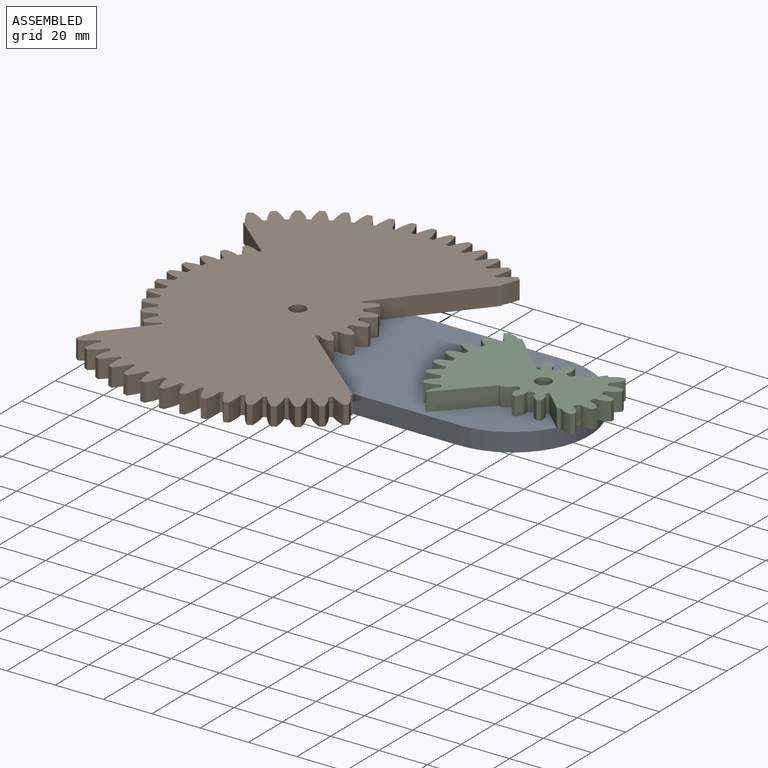
[diagram: assembled view]
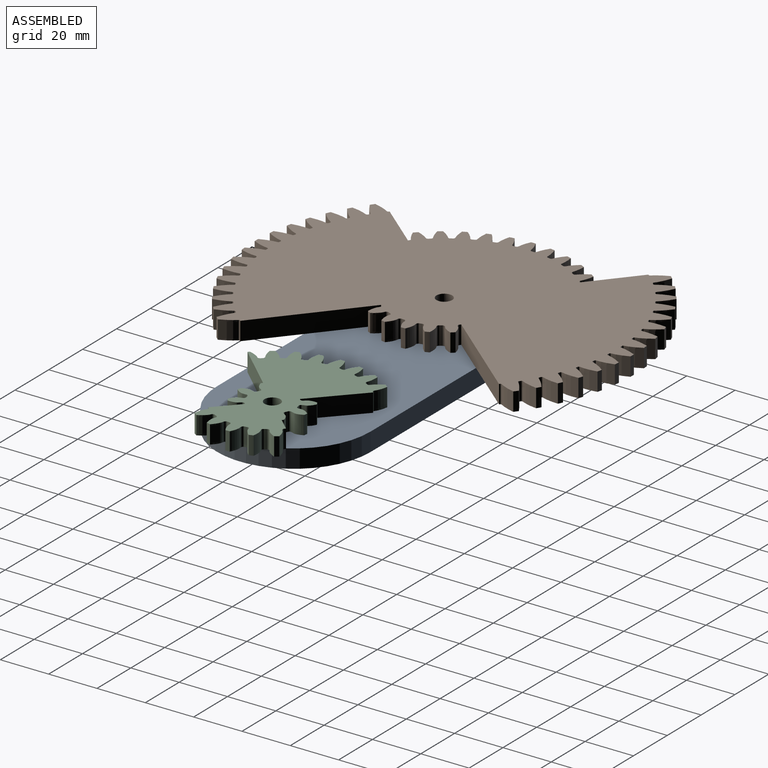
[diagram: assembled view, second angle]
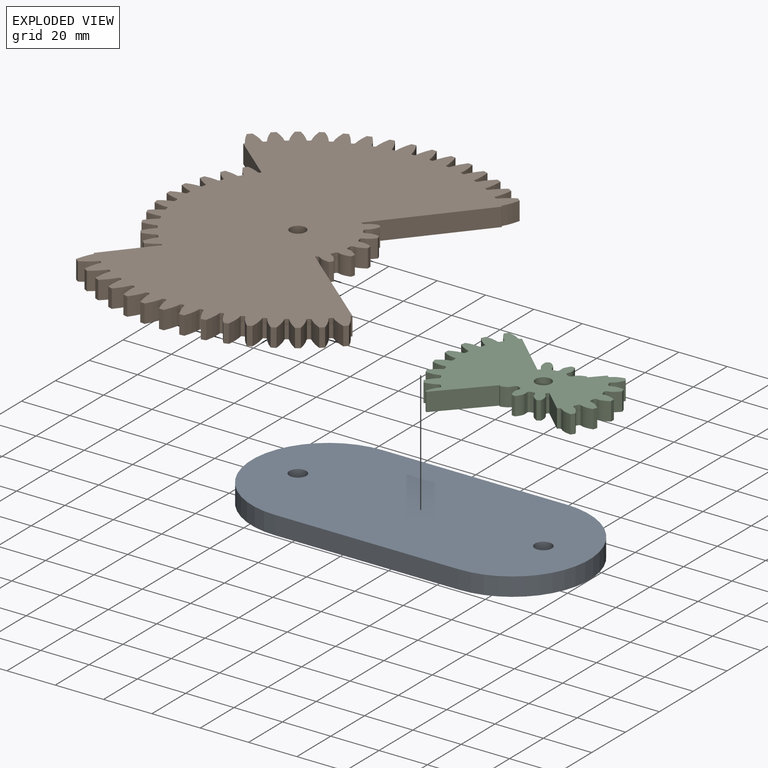
[diagram: exploded view]
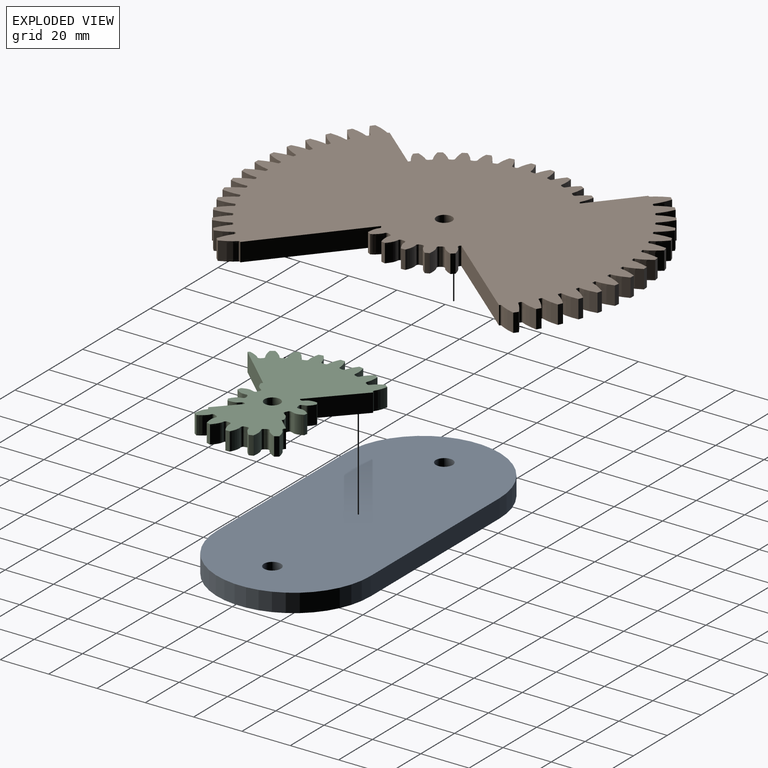
[diagram: exploded view, second angle]
ASSEMBLY  parts=3 mates=2
PART A: 8 faces, bbox 139.7x63.5x7.6 mm
  f0: plane 76.2x7.62mm, normal (0,1,0), area 580.6mm2, adj f4,f5,f6,f7
  f1: plane 76.2x7.62mm, normal (0,-1,0), area 580.6mm2, adj f4,f5,f6,f7
  f2: cylinder r=3.5mm len=7.62mm, axis (0,0,-1), area 167.6mm2, adj f4,f5
  f3: cylinder r=3.5mm len=7.62mm, axis (0,0,-1), area 167.6mm2, adj f4,f5
  f4: plane 139.7x63.5mm, normal (0,0,1), area 7928.7mm2, adj f0,f1,f2,f3,f6,f7
  f5: plane 139.7x63.5mm, normal (0,0,-1), area 7928.7mm2, adj f0,f1,f2,f3,f6,f7
  f6: cylinder r=31.75mm len=63.5mm, axis (0,0,-1), area 760.1mm2, adj f0,f1,f4,f5
  f7: cylinder r=31.75mm len=63.5mm, axis (0,0,1), area 760.1mm2, adj f0,f1,f4,f5
PART B: 281 faces, bbox 157.4x7.6x157.4 mm
  f0: plane 49.38x7.62mm, normal (0,0,1), area 376.3mm2, adj f3,f45,f96,f190
  f1: plane 49.38x7.62mm, normal (1,0,0), area 376.3mm2, adj f3,f45,f95,f97
  f2: cylinder r=3.25mm len=7.62mm, axis (0,1,0), area 155.6mm2, adj f3,f45
  f3: plane 157.36x157.36mm, normal (0,-1,0), area 11475.5mm2, adj f0,f1,f2,f4,f5,f6,f7,f8
  f4: extruded ~7.62x4.98mm, area 41.1mm2, adj f3,f44,f45,f46
  f5: cylinder r=47.62mm len=7.62mm, axis (0,1,0), area 3.5mm2, adj f3,f45,f46,f189
  f6: cylinder r=47.62mm len=7.62mm, axis (0,1,0), area 3.5mm2, adj f3,f45,f47,f188
  f7: extruded ~7.62x4.98mm, area 41.1mm2, adj f3,f8,f45,f47
  f8: cylinder r=53.34mm len=7.62mm, axis (0,1,0), area 14.7mm2, adj f3,f7,f9,f45
  f9: extruded ~7.62x5.23mm, area 41.1mm2, adj f3,f8,f45,f48
  f10: cylinder r=47.62mm len=7.62mm, axis (0,1,0), area 7mm2, adj f3,f45,f48,f49
  f11: extruded ~7.62x4.61mm, area 41.1mm2, adj f3,f12,f45,f49
  f12: cylinder r=53.34mm len=7.62mm, axis (0,1,0), area 14.7mm2, adj f3,f11,f13,f45
  f13: extruded ~7.62x5.35mm, area 41.1mm2, adj f3,f12,f45,f50
  f14: cylinder r=47.62mm len=7.62mm, axis (0,1,0), area 7mm2, adj f3,f45,f50,f51
  f15: extruded ~7.62x4.12mm, area 41.1mm2, adj f3,f16,f45,f51
  f16: cylinder r=53.34mm len=7.62mm, axis (0,1,0), area 14.7mm2, adj f3,f15,f17,f45
  f17: extruded ~7.62x5.34mm, area 41.1mm2, adj f3,f16,f45,f52
  f18: cylinder r=47.62mm len=7.62mm, axis (0,1,0), area 7mm2, adj f3,f45,f52,f53
  f19: extruded ~7.62x4.04mm, area 41.1mm2, adj f3,f20,f45,f53
  f20: cylinder r=53.34mm len=7.62mm, axis (0,1,0), area 14.7mm2, adj f3,f19,f21,f45
  f21: extruded ~7.62x5.2mm, area 41.1mm2, adj f3,f20,f45,f54
  f22: cylinder r=47.62mm len=7.62mm, axis (0,1,0), area 7mm2, adj f3,f45,f54,f55
  f23: extruded ~7.62x4.54mm, area 41.1mm2, adj f3,f24,f45,f55
  f24: cylinder r=53.34mm len=7.62mm, axis (0,1,0), area 14.7mm2, adj f3,f23,f25,f45
  f25: extruded ~7.62x4.93mm, area 41.1mm2, adj f3,f24,f45,f56
  f26: cylinder r=47.62mm len=7.62mm, axis (0,1,0), area 7mm2, adj f3,f45,f56,f57
  f27: extruded ~7.62x4.93mm, area 41.1mm2, adj f3,f28,f45,f57
  f28: cylinder r=53.34mm len=7.62mm, axis (0,1,0), area 14.7mm2, adj f3,f27,f29,f45
  f29: extruded ~7.62x4.54mm, area 41.1mm2, adj f3,f28,f45,f58
  f30: cylinder r=47.62mm len=7.62mm, axis (0,1,0), area 7mm2, adj f3,f45,f58,f59
  f31: extruded ~7.62x5.2mm, area 41.1mm2, adj f3,f32,f45,f59
  f32: cylinder r=53.34mm len=7.62mm, axis (0,1,0), area 14.7mm2, adj f3,f31,f33,f45
  f33: extruded ~7.62x4.04mm, area 41.1mm2, adj f3,f32,f45,f60
  f34: cylinder r=47.62mm len=7.62mm, axis (0,1,0), area 7mm2, adj f3,f45,f60,f61
  f35: extruded ~7.62x5.34mm, area 41.1mm2, adj f3,f36,f45,f61
  f36: cylinder r=53.34mm len=7.62mm, axis (0,1,0), area 14.7mm2, adj f3,f35,f37,f45
  f37: extruded ~7.62x4.12mm, area 41.1mm2, adj f3,f36,f45,f62
  f38: cylinder r=47.62mm len=7.62mm, axis (0,1,0), area 7mm2, adj f3,f45,f62,f63
  f39: extruded ~7.62x5.35mm, area 41.1mm2, adj f3,f40,f45,f63
  f40: cylinder r=53.34mm len=7.62mm, axis (0,1,0), area 14.7mm2, adj f3,f39,f41,f45
  f41: extruded ~7.62x4.61mm, area 41.1mm2, adj f3,f40,f45,f64
  f42: cylinder r=47.62mm len=7.62mm, axis (0,1,0), area 7mm2, adj f3,f45,f64,f65
  f43: extruded ~7.62x5.23mm, area 41.1mm2, adj f3,f44,f45,f65
  f44: cylinder r=53.34mm len=7.62mm, axis (0,1,0), area 14.7mm2, adj f3,f4,f43,f45
  f45: plane 157.36x157.36mm, normal (0,1,0), area 11475.5mm2, adj f0,f1,f2,f4,f5,f6,f7,f8
  f46: cylinder r=0.77mm len=7.62mm, axis (0,1,0), area 8.3mm2, adj f3,f4,f5,f45
  f47: cylinder r=0.77mm len=7.62mm, axis (0,1,0), area 8.3mm2, adj f3,f6,f7,f45
  f48: cylinder r=0.77mm len=7.62mm, axis (0,1,0), area 8.3mm2, adj f3,f9,f10,f45
  f49: cylinder r=0.77mm len=7.62mm, axis (0,1,0), area 8.3mm2, adj f3,f10,f11,f45
  f50: cylinder r=0.77mm len=7.62mm, axis (0,1,0), area 8.3mm2, adj f3,f13,f14,f45
  f51: cylinder r=0.77mm len=7.62mm, axis (0,1,0), area 8.3mm2, adj f3,f14,f15,f45
  f52: cylinder r=0.77mm len=7.62mm, axis (0,1,0), area 8.3mm2, adj f3,f17,f18,f45
  f53: cylinder r=0.77mm len=7.62mm, axis (0,1,0), area 8.3mm2, adj f3,f18,f19,f45
  f54: cylinder r=0.77mm len=7.62mm, axis (0,1,0), area 8.3mm2, adj f3,f21,f22,f45
  f55: cylinder r=0.77mm len=7.62mm, axis (0,1,0), area 8.3mm2, adj f3,f22,f23,f45
  f56: cylinder r=0.77mm len=7.62mm, axis (0,1,0), area 8.3mm2, adj f3,f25,f26,f45
  f57: cylinder r=0.77mm len=7.62mm, axis (0,1,0), area 8.3mm2, adj f3,f26,f27,f45
  f58: cylinder r=0.77mm len=7.62mm, axis (0,1,0), area 8.3mm2, adj f3,f29,f30,f45
  f59: cylinder r=0.77mm len=7.62mm, axis (0,1,0), area 8.3mm2, adj f3,f30,f31,f45
  f60: cylinder r=0.77mm len=7.62mm, axis (0,1,0), area 8.3mm2, adj f3,f33,f34,f45
  f61: cylinder r=0.77mm len=7.62mm, axis (0,1,0), area 8.3mm2, adj f3,f34,f35,f45
  f62: cylinder r=0.77mm len=7.62mm, axis (0,1,0), area 8.3mm2, adj f3,f37,f38,f45
  f63: cylinder r=0.77mm len=7.62mm, axis (0,1,0), area 8.3mm2, adj f3,f38,f39,f45
  f64: cylinder r=0.77mm len=7.62mm, axis (0,1,0), area 8.3mm2, adj f3,f41,f42,f45
  f65: cylinder r=0.77mm len=7.62mm, axis (0,1,0), area 8.3mm2, adj f3,f42,f43,f45
  f66: cylinder r=0.94mm len=7.62mm, axis (0,1,0), area 11mm2, adj f3,f45,f67,f96
  f67: extruded ~7.62x4.62mm, area 39.2mm2, adj f3,f45,f66,f68
  f68: cylinder r=27.94mm len=7.62mm, axis (0,1,0), area 13.4mm2, adj f3,f45,f67,f69
  f69: extruded ~7.62x5.02mm, area 39.2mm2, adj f3,f45,f68,f70
  f70: cylinder r=0.94mm len=7.62mm, axis (0,1,0), area 11mm2, adj f3,f45,f69,f71
  f71: cylinder r=22.23mm len=7.62mm, axis (0,1,0), area 7.7mm2, adj f3,f45,f70,f72
  f72: cylinder r=0.94mm len=7.62mm, axis (0,1,0), area 11mm2, adj f3,f45,f71,f73
  f73: extruded ~7.62x3.76mm, area 39.2mm2, adj f3,f45,f72,f74
  f74: cylinder r=27.94mm len=7.62mm, axis (0,1,0), area 13.4mm2, adj f3,f45,f73,f75
  f75: extruded ~7.62x4.93mm, area 39.2mm2, adj f3,f45,f74,f76
  f76: cylinder r=0.94mm len=7.62mm, axis (0,1,0), area 11mm2, adj f3,f45,f75,f77
  f77: cylinder r=22.23mm len=7.62mm, axis (0,1,0), area 7.7mm2, adj f3,f45,f76,f78
  f78: cylinder r=0.94mm len=7.62mm, axis (0,1,0), area 11mm2, adj f3,f45,f77,f79
  f79: extruded ~7.62x4.36mm, area 39.2mm2, adj f3,f45,f78,f80
  f80: cylinder r=27.94mm len=7.62mm, axis (0,1,0), area 13.4mm2, adj f3,f45,f79,f81
  f81: extruded ~7.62x4.36mm, area 39.2mm2, adj f3,f45,f80,f82
  f82: cylinder r=0.94mm len=7.62mm, axis (0,1,0), area 11mm2, adj f3,f45,f81,f83
  f83: cylinder r=22.23mm len=7.62mm, axis (0,1,0), area 7.7mm2, adj f3,f45,f82,f84
  f84: cylinder r=0.94mm len=7.62mm, axis (0,1,0), area 11mm2, adj f3,f45,f83,f85
  f85: extruded ~7.62x4.93mm, area 39.2mm2, adj f3,f45,f84,f86
  f86: cylinder r=27.94mm len=7.62mm, axis (0,1,0), area 13.4mm2, adj f3,f45,f85,f87
  f87: extruded ~7.62x3.76mm, area 39.2mm2, adj f3,f45,f86,f88
  f88: cylinder r=0.94mm len=7.62mm, axis (0,1,0), area 11mm2, adj f3,f45,f87,f89
  f89: cylinder r=22.23mm len=7.62mm, axis (0,1,0), area 7.7mm2, adj f3,f45,f88,f90
  f90: cylinder r=0.94mm len=7.62mm, axis (0,1,0), area 11mm2, adj f3,f45,f89,f91
  f91: extruded ~7.62x5.02mm, area 39.2mm2, adj f3,f45,f90,f92
  f92: cylinder r=27.94mm len=7.62mm, axis (0,1,0), area 13.4mm2, adj f3,f45,f91,f93
  f93: extruded ~7.62x4.62mm, area 39.2mm2, adj f3,f45,f92,f94
  f94: cylinder r=0.94mm len=7.62mm, axis (0,1,0), area 11mm2, adj f3,f45,f93,f95
  f95: cylinder r=22.23mm len=7.62mm, axis (0,1,0), area 3.9mm2, adj f1,f3,f45,f94
  f96: cylinder r=22.23mm len=7.62mm, axis (0,1,0), area 3.9mm2, adj f0,f3,f45,f66
  f97: cylinder r=71.6mm len=7.62mm, axis (0,1,0), area 2.4mm2, adj f1,f3,f45,f98
  f98: cylinder r=0.54mm len=7.62mm, axis (0,1,0), area 5.9mm2, adj f3,f45,f97,f99
  f99: extruded ~7.62x6.6mm, area 53.5mm2, adj f3,f45,f98,f100
  f100: cylinder r=78.74mm len=7.62mm, axis (0,1,0), area 15.2mm2, adj f3,f45,f99,f101
  f101: extruded ~7.62x6.81mm, area 53.5mm2, adj f3,f45,f100,f102
  f102: cylinder r=0.54mm len=7.62mm, axis (0,1,0), area 5.9mm2, adj f3,f45,f101,f103
  f103: cylinder r=71.6mm len=7.62mm, axis (0,1,0), area 4.8mm2, adj f3,f45,f102,f104
  f104: cylinder r=0.54mm len=7.62mm, axis (0,1,0), area 5.9mm2, adj f3,f45,f103,f105
  f105: extruded ~7.62x6.33mm, area 53.5mm2, adj f3,f45,f104,f106
  f106: cylinder r=78.74mm len=7.62mm, axis (0,1,0), area 15.2mm2, adj f3,f45,f105,f107
  f107: extruded ~7.62x6.93mm, area 53.5mm2, adj f3,f45,f106,f108
  f108: cylinder r=0.54mm len=7.62mm, axis (0,1,0), area 5.9mm2, adj f3,f45,f107,f109
  f109: cylinder r=71.6mm len=7.62mm, axis (0,1,0), area 4.8mm2, adj f3,f45,f108,f110
  f110: cylinder r=0.54mm len=7.62mm, axis (0,1,0), area 5.9mm2, adj f3,f45,f109,f111
  f111: extruded ~7.62x5.99mm, area 53.5mm2, adj f3,f45,f110,f112
  f112: cylinder r=78.74mm len=7.62mm, axis (0,1,0), area 15.2mm2, adj f3,f45,f111,f113
  f113: extruded ~7.62x6.98mm, area 53.5mm2, adj f3,f45,f112,f114
  f114: cylinder r=0.54mm len=7.62mm, axis (0,1,0), area 5.9mm2, adj f3,f45,f113,f115
  f115: cylinder r=71.6mm len=7.62mm, axis (0,1,0), area 4.8mm2, adj f3,f45,f114,f116
  f116: cylinder r=0.54mm len=7.62mm, axis (0,1,0), area 5.9mm2, adj f3,f45,f115,f117
  f117: extruded ~7.62x5.58mm, area 53.5mm2, adj f3,f45,f116,f118
  f118: cylinder r=78.74mm len=7.62mm, axis (0,1,0), area 15.2mm2, adj f3,f45,f117,f119
  f119: extruded ~7.62x6.96mm, area 53.5mm2, adj f3,f45,f118,f120
  f120: cylinder r=0.54mm len=7.62mm, axis (0,1,0), area 5.9mm2, adj f3,f45,f119,f121
  f121: cylinder r=71.6mm len=7.62mm, axis (0,1,0), area 4.8mm2, adj f3,f45,f120,f122
  f122: cylinder r=0.54mm len=7.62mm, axis (0,1,0), area 5.9mm2, adj f3,f45,f121,f123
  f123: extruded ~7.62x5.11mm, area 53.5mm2, adj f3,f45,f122,f124
  f124: cylinder r=78.74mm len=7.62mm, axis (0,1,0), area 15.2mm2, adj f3,f45,f123,f125
  f125: extruded ~7.62x6.86mm, area 53.5mm2, adj f3,f45,f124,f126
  f126: cylinder r=0.54mm len=7.62mm, axis (0,1,0), area 5.9mm2, adj f3,f45,f125,f127
  f127: cylinder r=71.6mm len=7.62mm, axis (0,1,0), area 4.8mm2, adj f3,f45,f126,f128
  f128: cylinder r=0.54mm len=7.62mm, axis (0,1,0), area 5.9mm2, adj f3,f45,f127,f129
  f129: extruded ~7.62x5.27mm, area 53.5mm2, adj f3,f45,f128,f130
  f130: cylinder r=78.74mm len=7.62mm, axis (0,1,0), area 15.2mm2, adj f3,f45,f129,f131
  f131: extruded ~7.62x6.68mm, area 53.5mm2, adj f3,f45,f130,f132
  f132: cylinder r=0.54mm len=7.62mm, axis (0,1,0), area 5.9mm2, adj f3,f45,f131,f133
  f133: cylinder r=71.6mm len=7.62mm, axis (0,1,0), area 4.8mm2, adj f3,f45,f132,f134
  f134: cylinder r=0.54mm len=7.62mm, axis (0,1,0), area 5.9mm2, adj f3,f45,f133,f135
  f135: extruded ~7.62x5.72mm, area 53.5mm2, adj f3,f45,f134,f136
  f136: cylinder r=78.74mm len=7.62mm, axis (0,1,0), area 15.2mm2, adj f3,f45,f135,f137
  f137: extruded ~7.62x6.43mm, area 53.5mm2, adj f3,f45,f136,f138
  f138: cylinder r=0.54mm len=7.62mm, axis (0,1,0), area 5.9mm2, adj f3,f45,f137,f139
  f139: cylinder r=71.6mm len=7.62mm, axis (0,1,0), area 4.8mm2, adj f3,f45,f138,f140
  f140: cylinder r=0.54mm len=7.62mm, axis (0,1,0), area 5.9mm2, adj f3,f45,f139,f141
  f141: extruded ~7.62x6.11mm, area 53.5mm2, adj f3,f45,f140,f142
  f142: cylinder r=78.74mm len=7.62mm, axis (0,1,0), area 15.2mm2, adj f3,f45,f141,f143
  f143: extruded ~7.62x6.11mm, area 53.5mm2, adj f3,f45,f142,f144
  f144: cylinder r=0.54mm len=7.62mm, axis (0,1,0), area 5.9mm2, adj f3,f45,f143,f145
  f145: cylinder r=71.6mm len=7.62mm, axis (0,1,0), area 4.8mm2, adj f3,f45,f144,f146
  f146: cylinder r=0.54mm len=7.62mm, axis (0,1,0), area 5.9mm2, adj f3,f45,f145,f147
  f147: extruded ~7.62x6.43mm, area 53.5mm2, adj f3,f45,f146,f148
  f148: cylinder r=78.74mm len=7.62mm, axis (0,1,0), area 15.2mm2, adj f3,f45,f147,f149
  f149: extruded ~7.62x5.72mm, area 53.5mm2, adj f3,f45,f148,f150
  f150: cylinder r=0.54mm len=7.62mm, axis (0,1,0), area 5.9mm2, adj f3,f45,f149,f151
  f151: cylinder r=71.6mm len=7.62mm, axis (0,1,0), area 4.8mm2, adj f3,f45,f150,f152
  f152: cylinder r=0.54mm len=7.62mm, axis (0,1,0), area 5.9mm2, adj f3,f45,f151,f153
  f153: extruded ~7.62x6.68mm, area 53.5mm2, adj f3,f45,f152,f154
  f154: cylinder r=78.74mm len=7.62mm, axis (0,1,0), area 15.2mm2, adj f3,f45,f153,f155
  f155: extruded ~7.62x5.27mm, area 53.5mm2, adj f3,f45,f154,f156
  f156: cylinder r=0.54mm len=7.62mm, axis (0,1,0), area 5.9mm2, adj f3,f45,f155,f157
  f157: cylinder r=71.6mm len=7.62mm, axis (0,1,0), area 4.8mm2, adj f3,f45,f156,f158
  f158: cylinder r=0.54mm len=7.62mm, axis (0,1,0), area 5.9mm2, adj f3,f45,f157,f159
  f159: extruded ~7.62x6.86mm, area 53.5mm2, adj f3,f45,f158,f160
  f160: cylinder r=78.74mm len=7.62mm, axis (0,1,0), area 15.2mm2, adj f3,f45,f159,f161
  f161: extruded ~7.62x5.11mm, area 53.5mm2, adj f3,f45,f160,f162
  f162: cylinder r=0.54mm len=7.62mm, axis (0,1,0), area 5.9mm2, adj f3,f45,f161,f163
  f163: cylinder r=71.6mm len=7.62mm, axis (0,1,0), area 4.8mm2, adj f3,f45,f162,f164
  f164: cylinder r=0.54mm len=7.62mm, axis (0,1,0), area 5.9mm2, adj f3,f45,f163,f165
  f165: extruded ~7.62x6.96mm, area 53.5mm2, adj f3,f45,f164,f166
  f166: cylinder r=78.74mm len=7.62mm, axis (0,1,0), area 15.2mm2, adj f3,f45,f165,f167
  f167: extruded ~7.62x5.58mm, area 53.5mm2, adj f3,f45,f166,f168
  f168: cylinder r=0.54mm len=7.62mm, axis (0,1,0), area 5.9mm2, adj f3,f45,f167,f169
  f169: cylinder r=71.6mm len=7.62mm, axis (0,1,0), area 4.8mm2, adj f3,f45,f168,f170
  f170: cylinder r=0.54mm len=7.62mm, axis (0,1,0), area 5.9mm2, adj f3,f45,f169,f171
  f171: extruded ~7.62x6.98mm, area 53.5mm2, adj f3,f45,f170,f172
  f172: cylinder r=78.74mm len=7.62mm, axis (0,1,0), area 15.2mm2, adj f3,f45,f171,f173
  f173: extruded ~7.62x5.99mm, area 53.5mm2, adj f3,f45,f172,f174
  f174: cylinder r=0.54mm len=7.62mm, axis (0,1,0), area 5.9mm2, adj f3,f45,f173,f175
  f175: cylinder r=71.6mm len=7.62mm, axis (0,1,0), area 4.8mm2, adj f3,f45,f174,f176
  f176: cylinder r=0.54mm len=7.62mm, axis (0,1,0), area 5.9mm2, adj f3,f45,f175,f177
  f177: extruded ~7.62x6.93mm, area 53.5mm2, adj f3,f45,f176,f178
  f178: cylinder r=78.74mm len=7.62mm, axis (0,1,0), area 15.2mm2, adj f3,f45,f177,f179
  f179: extruded ~7.62x6.33mm, area 53.5mm2, adj f3,f45,f178,f180
  f180: cylinder r=0.54mm len=7.62mm, axis (0,1,0), area 5.9mm2, adj f3,f45,f179,f181
  f181: cylinder r=71.6mm len=7.62mm, axis (0,1,0), area 4.8mm2, adj f3,f45,f180,f182
  f182: cylinder r=0.54mm len=7.62mm, axis (0,1,0), area 5.9mm2, adj f3,f45,f181,f183
  f183: extruded ~7.62x6.81mm, area 53.5mm2, adj f3,f45,f182,f184
  f184: cylinder r=78.74mm len=7.62mm, axis (0,1,0), area 15.2mm2, adj f3,f45,f183,f185
  f185: extruded ~7.62x6.6mm, area 53.5mm2, adj f3,f45,f184,f186
  f186: cylinder r=0.54mm len=7.62mm, axis (0,1,0), area 5.9mm2, adj f3,f45,f185,f187
  f187: cylinder r=71.6mm len=7.62mm, axis (0,1,0), area 2.4mm2, adj f3,f45,f186,f188
  f188: plane 23.98x7.62mm, normal (0,0,-1), area 182.7mm2, adj f3,f6,f45,f187
  f189: plane 23.98x7.62mm, normal (-1,0,0), area 182.7mm2, adj f3,f5,f45,f191
  f190: cylinder r=71.6mm len=7.62mm, axis (0,1,0), area 2.4mm2, adj f0,f3,f45,f280
  f191: cylinder r=71.6mm len=7.62mm, axis (0,1,0), area 2.4mm2, adj f3,f45,f189,f251
  f192: extruded ~7.62x6.6mm, area 53.5mm2, adj f3,f45,f193,f251
  f193: cylinder r=78.74mm len=7.62mm, axis (0,1,0), area 15.2mm2, adj f3,f45,f192,f194
  f194: extruded ~7.62x6.81mm, area 53.5mm2, adj f3,f45,f193,f252
  f195: cylinder r=71.6mm len=7.62mm, axis (0,1,0), area 4.8mm2, adj f3,f45,f252,f253
  f196: extruded ~7.62x6.33mm, area 53.5mm2, adj f3,f45,f197,f253
  f197: cylinder r=78.74mm len=7.62mm, axis (0,1,0), area 15.2mm2, adj f3,f45,f196,f198
  f198: extruded ~7.62x6.93mm, area 53.5mm2, adj f3,f45,f197,f254
  f199: cylinder r=71.6mm len=7.62mm, axis (0,1,0), area 4.8mm2, adj f3,f45,f254,f255
  f200: extruded ~7.62x5.99mm, area 53.5mm2, adj f3,f45,f201,f255
  f201: cylinder r=78.74mm len=7.62mm, axis (0,1,0), area 15.2mm2, adj f3,f45,f200,f202
  f202: extruded ~7.62x6.98mm, area 53.5mm2, adj f3,f45,f201,f256
  f203: cylinder r=71.6mm len=7.62mm, axis (0,1,0), area 4.8mm2, adj f3,f45,f256,f257
  f204: extruded ~7.62x5.58mm, area 53.5mm2, adj f3,f45,f205,f257
  f205: cylinder r=78.74mm len=7.62mm, axis (0,1,0), area 15.2mm2, adj f3,f45,f204,f206
  f206: extruded ~7.62x6.96mm, area 53.5mm2, adj f3,f45,f205,f258
  f207: cylinder r=71.6mm len=7.62mm, axis (0,1,0), area 4.8mm2, adj f3,f45,f258,f259
  f208: extruded ~7.62x5.11mm, area 53.5mm2, adj f3,f45,f209,f259
  f209: cylinder r=78.74mm len=7.62mm, axis (0,1,0), area 15.2mm2, adj f3,f45,f208,f210
  f210: extruded ~7.62x6.86mm, area 53.5mm2, adj f3,f45,f209,f260
  f211: cylinder r=71.6mm len=7.62mm, axis (0,1,0), area 4.8mm2, adj f3,f45,f260,f261
  f212: extruded ~7.62x5.27mm, area 53.5mm2, adj f3,f45,f213,f261
  f213: cylinder r=78.74mm len=7.62mm, axis (0,1,0), area 15.2mm2, adj f3,f45,f212,f214
  f214: extruded ~7.62x6.68mm, area 53.5mm2, adj f3,f45,f213,f262
  f215: cylinder r=71.6mm len=7.62mm, axis (0,1,0), area 4.8mm2, adj f3,f45,f262,f263
  f216: extruded ~7.62x5.72mm, area 53.5mm2, adj f3,f45,f217,f263
  f217: cylinder r=78.74mm len=7.62mm, axis (0,1,0), area 15.2mm2, adj f3,f45,f216,f218
  f218: extruded ~7.62x6.43mm, area 53.5mm2, adj f3,f45,f217,f264
  f219: cylinder r=71.6mm len=7.62mm, axis (0,1,0), area 4.8mm2, adj f3,f45,f264,f265
  f220: extruded ~7.62x6.11mm, area 53.5mm2, adj f3,f45,f221,f265
  f221: cylinder r=78.74mm len=7.62mm, axis (0,1,0), area 15.2mm2, adj f3,f45,f220,f222
  f222: extruded ~7.62x6.11mm, area 53.5mm2, adj f3,f45,f221,f266
  f223: cylinder r=71.6mm len=7.62mm, axis (0,1,0), area 4.8mm2, adj f3,f45,f266,f267
  f224: extruded ~7.62x6.43mm, area 53.5mm2, adj f3,f45,f225,f267
  f225: cylinder r=78.74mm len=7.62mm, axis (0,1,0), area 15.2mm2, adj f3,f45,f224,f226
  f226: extruded ~7.62x5.72mm, area 53.5mm2, adj f3,f45,f225,f268
  f227: cylinder r=71.6mm len=7.62mm, axis (0,1,0), area 4.8mm2, adj f3,f45,f268,f269
  f228: extruded ~7.62x6.68mm, area 53.5mm2, adj f3,f45,f229,f269
  f229: cylinder r=78.74mm len=7.62mm, axis (0,1,0), area 15.2mm2, adj f3,f45,f228,f230
  f230: extruded ~7.62x5.27mm, area 53.5mm2, adj f3,f45,f229,f270
  f231: cylinder r=71.6mm len=7.62mm, axis (0,1,0), area 4.8mm2, adj f3,f45,f270,f271
  f232: extruded ~7.62x6.86mm, area 53.5mm2, adj f3,f45,f233,f271
  f233: cylinder r=78.74mm len=7.62mm, axis (0,1,0), area 15.2mm2, adj f3,f45,f232,f234
  f234: extruded ~7.62x5.11mm, area 53.5mm2, adj f3,f45,f233,f272
  f235: cylinder r=71.6mm len=7.62mm, axis (0,1,0), area 4.8mm2, adj f3,f45,f272,f273
  f236: extruded ~7.62x6.96mm, area 53.5mm2, adj f3,f45,f237,f273
  f237: cylinder r=78.74mm len=7.62mm, axis (0,1,0), area 15.2mm2, adj f3,f45,f236,f238
  f238: extruded ~7.62x5.58mm, area 53.5mm2, adj f3,f45,f237,f274
  f239: cylinder r=71.6mm len=7.62mm, axis (0,1,0), area 4.8mm2, adj f3,f45,f274,f275
  f240: extruded ~7.62x6.98mm, area 53.5mm2, adj f3,f45,f241,f275
  f241: cylinder r=78.74mm len=7.62mm, axis (0,1,0), area 15.2mm2, adj f3,f45,f240,f242
  f242: extruded ~7.62x5.99mm, area 53.5mm2, adj f3,f45,f241,f276
  f243: cylinder r=71.6mm len=7.62mm, axis (0,1,0), area 4.8mm2, adj f3,f45,f276,f277
  f244: extruded ~7.62x6.93mm, area 53.5mm2, adj f3,f45,f245,f277
  f245: cylinder r=78.74mm len=7.62mm, axis (0,1,0), area 15.2mm2, adj f3,f45,f244,f246
  f246: extruded ~7.62x6.33mm, area 53.5mm2, adj f3,f45,f245,f278
  f247: cylinder r=71.6mm len=7.62mm, axis (0,1,0), area 4.8mm2, adj f3,f45,f278,f279
  f248: extruded ~7.62x6.81mm, area 53.5mm2, adj f3,f45,f249,f279
  f249: cylinder r=78.74mm len=7.62mm, axis (0,1,0), area 15.2mm2, adj f3,f45,f248,f250
  f250: extruded ~7.62x6.6mm, area 53.5mm2, adj f3,f45,f249,f280
  f251: cylinder r=0.54mm len=7.62mm, axis (0,1,0), area 5.9mm2, adj f3,f45,f191,f192
  f252: cylinder r=0.54mm len=7.62mm, axis (0,1,0), area 5.9mm2, adj f3,f45,f194,f195
  f253: cylinder r=0.54mm len=7.62mm, axis (0,1,0), area 5.9mm2, adj f3,f45,f195,f196
  f254: cylinder r=0.54mm len=7.62mm, axis (0,1,0), area 5.9mm2, adj f3,f45,f198,f199
  f255: cylinder r=0.54mm len=7.62mm, axis (0,1,0), area 5.9mm2, adj f3,f45,f199,f200
  f256: cylinder r=0.54mm len=7.62mm, axis (0,1,0), area 5.9mm2, adj f3,f45,f202,f203
  f257: cylinder r=0.54mm len=7.62mm, axis (0,1,0), area 5.9mm2, adj f3,f45,f203,f204
  f258: cylinder r=0.54mm len=7.62mm, axis (0,1,0), area 5.9mm2, adj f3,f45,f206,f207
  f259: cylinder r=0.54mm len=7.62mm, axis (0,1,0), area 5.9mm2, adj f3,f45,f207,f208
  f260: cylinder r=0.54mm len=7.62mm, axis (0,1,0), area 5.9mm2, adj f3,f45,f210,f211
  f261: cylinder r=0.54mm len=7.62mm, axis (0,1,0), area 5.9mm2, adj f3,f45,f211,f212
  f262: cylinder r=0.54mm len=7.62mm, axis (0,1,0), area 5.9mm2, adj f3,f45,f214,f215
  f263: cylinder r=0.54mm len=7.62mm, axis (0,1,0), area 5.9mm2, adj f3,f45,f215,f216
  f264: cylinder r=0.54mm len=7.62mm, axis (0,1,0), area 5.9mm2, adj f3,f45,f218,f219
  f265: cylinder r=0.54mm len=7.62mm, axis (0,1,0), area 5.9mm2, adj f3,f45,f219,f220
  f266: cylinder r=0.54mm len=7.62mm, axis (0,1,0), area 5.9mm2, adj f3,f45,f222,f223
  f267: cylinder r=0.54mm len=7.62mm, axis (0,1,0), area 5.9mm2, adj f3,f45,f223,f224
  f268: cylinder r=0.54mm len=7.62mm, axis (0,1,0), area 5.9mm2, adj f3,f45,f226,f227
  f269: cylinder r=0.54mm len=7.62mm, axis (0,1,0), area 5.9mm2, adj f3,f45,f227,f228
  f270: cylinder r=0.54mm len=7.62mm, axis (0,1,0), area 5.9mm2, adj f3,f45,f230,f231
  f271: cylinder r=0.54mm len=7.62mm, axis (0,1,0), area 5.9mm2, adj f3,f45,f231,f232
  f272: cylinder r=0.54mm len=7.62mm, axis (0,1,0), area 5.9mm2, adj f3,f45,f234,f235
  f273: cylinder r=0.54mm len=7.62mm, axis (0,1,0), area 5.9mm2, adj f3,f45,f235,f236
  f274: cylinder r=0.54mm len=7.62mm, axis (0,1,0), area 5.9mm2, adj f3,f45,f238,f239
  f275: cylinder r=0.54mm len=7.62mm, axis (0,1,0), area 5.9mm2, adj f3,f45,f239,f240
  f276: cylinder r=0.54mm len=7.62mm, axis (0,1,0), area 5.9mm2, adj f3,f45,f242,f243
  f277: cylinder r=0.54mm len=7.62mm, axis (0,1,0), area 5.9mm2, adj f3,f45,f243,f244
  f278: cylinder r=0.54mm len=7.62mm, axis (0,1,0), area 5.9mm2, adj f3,f45,f246,f247
  f279: cylinder r=0.54mm len=7.62mm, axis (0,1,0), area 5.9mm2, adj f3,f45,f247,f248
  f280: cylinder r=0.54mm len=7.62mm, axis (0,1,0), area 5.9mm2, adj f3,f45,f190,f250
PART C: 116 faces, bbox 68.4x7.6x68.2 mm
  f0: cylinder r=9.53mm len=7.62mm, axis (0,1,0), area 4mm2, adj f23,f24,f25,f67
  f1: extruded ~7.62x4.42mm, area 40.1mm2, adj f2,f23,f24,f25
  f2: cylinder r=15.24mm len=7.62mm, axis (0,1,0), area 11.4mm2, adj f1,f3,f23,f24
  f3: extruded ~7.62x5.06mm, area 40.1mm2, adj f2,f23,f24,f26
  f4: cylinder r=9.53mm len=7.62mm, axis (0,1,0), area 8.1mm2, adj f23,f24,f26,f27
  f5: extruded ~7.62x4.64mm, area 40.1mm2, adj f6,f23,f24,f27
  f6: cylinder r=15.24mm len=7.62mm, axis (0,1,0), area 11.4mm2, adj f5,f7,f23,f24
  f7: extruded ~7.62x3.77mm, area 40.1mm2, adj f6,f23,f24,f28
  f8: cylinder r=9.53mm len=7.62mm, axis (0,1,0), area 8.1mm2, adj f23,f24,f28,f29
  f9: extruded ~7.62x4.99mm, area 40.1mm2, adj f10,f23,f24,f29
  f10: cylinder r=15.24mm len=7.62mm, axis (0,1,0), area 5.7mm2, adj f9,f23,f24,f68
  f11: cylinder r=9.53mm len=7.62mm, axis (0,1,0), area 4mm2, adj f23,f24,f30,f69
  f12: extruded ~7.62x4.42mm, area 40.1mm2, adj f13,f23,f24,f30
  f13: cylinder r=15.24mm len=7.62mm, axis (0,1,0), area 11.4mm2, adj f12,f14,f23,f24
  f14: extruded ~7.62x5.06mm, area 40.1mm2, adj f13,f23,f24,f31
  f15: cylinder r=9.53mm len=7.62mm, axis (0,1,0), area 8.1mm2, adj f23,f24,f31,f32
  f16: extruded ~7.62x4.64mm, area 40.1mm2, adj f17,f23,f24,f32
  f17: cylinder r=15.24mm len=7.62mm, axis (0,1,0), area 11.4mm2, adj f16,f18,f23,f24
  f18: extruded ~7.62x3.77mm, area 40.1mm2, adj f17,f23,f24,f33
  f19: cylinder r=9.53mm len=7.62mm, axis (0,1,0), area 8.1mm2, adj f23,f24,f33,f34
  f20: extruded ~7.62x4.99mm, area 40.1mm2, adj f21,f23,f24,f34
  f21: cylinder r=15.24mm len=7.62mm, axis (0,1,0), area 5.7mm2, adj f20,f23,f24,f66
  f22: cylinder r=3.25mm len=7.62mm, axis (0,1,0), area 155.6mm2, adj f23,f24
  f23: plane 68.38x68.25mm, normal (0,-1,0), area 1831.9mm2, adj f0,f1,f2,f3,f4,f5,f6,f7
  f24: plane 68.38x68.25mm, normal (0,1,0), area 1831.9mm2, adj f0,f1,f2,f3,f4,f5,f6,f7
  f25: cylinder r=0.9mm len=7.62mm, axis (0,1,0), area 10.2mm2, adj f0,f1,f23,f24
  f26: cylinder r=0.9mm len=7.62mm, axis (0,1,0), area 10.2mm2, adj f3,f4,f23,f24
  f27: cylinder r=0.9mm len=7.62mm, axis (0,1,0), area 10.2mm2, adj f4,f5,f23,f24
  f28: cylinder r=0.9mm len=7.62mm, axis (0,1,0), area 10.2mm2, adj f7,f8,f23,f24
  f29: cylinder r=0.9mm len=7.62mm, axis (0,1,0), area 10.2mm2, adj f8,f9,f23,f24
  f30: cylinder r=0.9mm len=7.62mm, axis (0,1,0), area 10.2mm2, adj f11,f12,f23,f24
  f31: cylinder r=0.9mm len=7.62mm, axis (0,1,0), area 10.2mm2, adj f14,f15,f23,f24
  f32: cylinder r=0.9mm len=7.62mm, axis (0,1,0), area 10.2mm2, adj f15,f16,f23,f24
  f33: cylinder r=0.9mm len=7.62mm, axis (0,1,0), area 10.2mm2, adj f18,f19,f23,f24
  f34: cylinder r=0.9mm len=7.62mm, axis (0,1,0), area 10.2mm2, adj f19,f20,f23,f24
  f35: cylinder r=22.23mm len=7.62mm, axis (0,1,0), area 3.9mm2, adj f23,f24,f36,f66
  f36: cylinder r=0.94mm len=7.62mm, axis (0,1,0), area 11mm2, adj f23,f24,f35,f37
  f37: extruded ~7.62x4.62mm, area 39.2mm2, adj f23,f24,f36,f38
  f38: cylinder r=27.94mm len=7.62mm, axis (0,1,0), area 13.4mm2, adj f23,f24,f37,f39
  f39: extruded ~7.62x5.02mm, area 39.2mm2, adj f23,f24,f38,f40
  f40: cylinder r=0.94mm len=7.62mm, axis (0,1,0), area 11mm2, adj f23,f24,f39,f41
  f41: cylinder r=22.23mm len=7.62mm, axis (0,1,0), area 7.7mm2, adj f23,f24,f40,f42
  f42: cylinder r=0.94mm len=7.62mm, axis (0,1,0), area 11mm2, adj f23,f24,f41,f43
  f43: extruded ~7.62x3.76mm, area 39.2mm2, adj f23,f24,f42,f44
  f44: cylinder r=27.94mm len=7.62mm, axis (0,1,0), area 13.4mm2, adj f23,f24,f43,f45
  f45: extruded ~7.62x4.93mm, area 39.2mm2, adj f23,f24,f44,f46
  f46: cylinder r=0.94mm len=7.62mm, axis (0,1,0), area 11mm2, adj f23,f24,f45,f47
  f47: cylinder r=22.23mm len=7.62mm, axis (0,1,0), area 7.7mm2, adj f23,f24,f46,f48
  f48: cylinder r=0.94mm len=7.62mm, axis (0,1,0), area 11mm2, adj f23,f24,f47,f49
  f49: extruded ~7.62x4.36mm, area 39.2mm2, adj f23,f24,f48,f50
  f50: cylinder r=27.94mm len=7.62mm, axis (0,1,0), area 13.4mm2, adj f23,f24,f49,f51
  f51: extruded ~7.62x4.36mm, area 39.2mm2, adj f23,f24,f50,f52
  f52: cylinder r=0.94mm len=7.62mm, axis (0,1,0), area 11mm2, adj f23,f24,f51,f53
  f53: cylinder r=22.23mm len=7.62mm, axis (0,1,0), area 7.7mm2, adj f23,f24,f52,f54
  f54: cylinder r=0.94mm len=7.62mm, axis (0,1,0), area 11mm2, adj f23,f24,f53,f55
  f55: extruded ~7.62x4.93mm, area 39.2mm2, adj f23,f24,f54,f56
  f56: cylinder r=27.94mm len=7.62mm, axis (0,1,0), area 13.4mm2, adj f23,f24,f55,f57
  f57: extruded ~7.62x3.76mm, area 39.2mm2, adj f23,f24,f56,f58
  f58: cylinder r=0.94mm len=7.62mm, axis (0,1,0), area 11mm2, adj f23,f24,f57,f59
  f59: cylinder r=22.23mm len=7.62mm, axis (0,1,0), area 7.7mm2, adj f23,f24,f58,f60
  f60: cylinder r=0.94mm len=7.62mm, axis (0,1,0), area 11mm2, adj f23,f24,f59,f61
  f61: extruded ~7.62x5.02mm, area 39.2mm2, adj f23,f24,f60,f62
  f62: cylinder r=27.94mm len=7.62mm, axis (0,1,0), area 13.4mm2, adj f23,f24,f61,f63
  f63: extruded ~7.62x4.62mm, area 39.2mm2, adj f23,f24,f62,f64
  f64: cylinder r=0.94mm len=7.62mm, axis (0,1,0), area 11mm2, adj f23,f24,f63,f65
  f65: cylinder r=22.23mm len=7.62mm, axis (0,1,0), area 3.9mm2, adj f23,f24,f64,f67
  f66: plane 7.62x6.99mm, normal (0,0,1), area 53.2mm2, adj f21,f23,f24,f35
  f67: plane 12.7x7.62mm, normal (1,0,0), area 96.8mm2, adj f0,f23,f24,f65
  f68: plane 25.4x7.62mm, normal (0,0,-1), area 193.5mm2, adj f10,f23,f24,f114
  f69: plane 25.4x7.62mm, normal (-1,0,0), area 193.5mm2, adj f11,f23,f24,f115
  f70: cylinder r=0.87mm len=7.62mm, axis (0,1,0), area 10.2mm2, adj f23,f24,f71,f115
  f71: extruded ~7.62x4.76mm, area 39.6mm2, adj f23,f24,f70,f72
  f72: cylinder r=40.64mm len=7.62mm, axis (0,1,0), area 14.2mm2, adj f23,f24,f71,f73
  f73: extruded ~7.62x5.07mm, area 39.6mm2, adj f23,f24,f72,f74
  f74: cylinder r=0.87mm len=7.62mm, axis (0,1,0), area 10.2mm2, adj f23,f24,f73,f75
  f75: cylinder r=34.92mm len=7.62mm, axis (0,1,0), area 7mm2, adj f23,f24,f74,f76
  f76: cylinder r=0.87mm len=7.62mm, axis (0,1,0), area 10.2mm2, adj f23,f24,f75,f77
  f77: extruded ~7.62x4.24mm, area 39.6mm2, adj f23,f24,f76,f78
  f78: cylinder r=40.64mm len=7.62mm, axis (0,1,0), area 14.2mm2, adj f23,f24,f77,f79
  f79: extruded ~7.62x5.15mm, area 39.6mm2, adj f23,f24,f78,f80
  f80: cylinder r=0.87mm len=7.62mm, axis (0,1,0), area 10.2mm2, adj f23,f24,f79,f81
  f81: cylinder r=34.92mm len=7.62mm, axis (0,1,0), area 7mm2, adj f23,f24,f80,f82
  f82: cylinder r=0.87mm len=7.62mm, axis (0,1,0), area 10.2mm2, adj f23,f24,f81,f83
  f83: extruded ~7.62x3.74mm, area 39.6mm2, adj f23,f24,f82,f84
  f84: cylinder r=40.64mm len=7.62mm, axis (0,1,0), area 14.2mm2, adj f23,f24,f83,f85
  f85: extruded ~7.62x5.01mm, area 39.6mm2, adj f23,f24,f84,f86
  f86: cylinder r=0.87mm len=7.62mm, axis (0,1,0), area 10.2mm2, adj f23,f24,f85,f87
  f87: cylinder r=34.92mm len=7.62mm, axis (0,1,0), area 7mm2, adj f23,f24,f86,f88
  f88: cylinder r=0.87mm len=7.62mm, axis (0,1,0), area 10.2mm2, adj f23,f24,f87,f89
  f89: extruded ~7.62x4.4mm, area 39.6mm2, adj f23,f24,f88,f90
  f90: cylinder r=40.64mm len=7.62mm, axis (0,1,0), area 14.2mm2, adj f23,f24,f89,f91
  f91: extruded ~7.62x4.65mm, area 39.6mm2, adj f23,f24,f90,f92
  f92: cylinder r=0.87mm len=7.62mm, axis (0,1,0), area 10.2mm2, adj f23,f24,f91,f93
  f93: cylinder r=34.92mm len=7.62mm, axis (0,1,0), area 7mm2, adj f23,f24,f92,f94
  f94: cylinder r=0.87mm len=7.62mm, axis (0,1,0), area 10.2mm2, adj f23,f24,f93,f95
  f95: extruded ~7.62x4.86mm, area 39.6mm2, adj f23,f24,f94,f96
  f96: cylinder r=40.64mm len=7.62mm, axis (0,1,0), area 14.2mm2, adj f23,f24,f95,f97
  f97: extruded ~7.62x4.09mm, area 39.6mm2, adj f23,f24,f96,f98
  f98: cylinder r=0.87mm len=7.62mm, axis (0,1,0), area 10.2mm2, adj f23,f24,f97,f99
  f99: cylinder r=34.92mm len=7.62mm, axis (0,1,0), area 7mm2, adj f23,f24,f98,f100
  f100: cylinder r=0.87mm len=7.62mm, axis (0,1,0), area 10.2mm2, adj f23,f24,f99,f101
  f101: extruded ~7.62x5.11mm, area 39.6mm2, adj f23,f24,f100,f102
  f102: cylinder r=40.64mm len=7.62mm, axis (0,1,0), area 14.2mm2, adj f23,f24,f101,f103
  f103: extruded ~7.62x3.91mm, area 39.6mm2, adj f23,f24,f102,f104
  f104: cylinder r=0.87mm len=7.62mm, axis (0,1,0), area 10.2mm2, adj f23,f24,f103,f105
  f105: cylinder r=34.92mm len=7.62mm, axis (0,1,0), area 7mm2, adj f23,f24,f104,f106
  f106: cylinder r=0.87mm len=7.62mm, axis (0,1,0), area 10.2mm2, adj f23,f24,f105,f107
  f107: extruded ~7.62x5.14mm, area 39.6mm2, adj f23,f24,f106,f108
  f108: cylinder r=40.64mm len=7.62mm, axis (0,1,0), area 14.2mm2, adj f23,f24,f107,f109
  f109: extruded ~7.62x4.53mm, area 39.6mm2, adj f23,f24,f108,f110
  f110: cylinder r=0.87mm len=7.62mm, axis (0,1,0), area 10.2mm2, adj f23,f24,f109,f111
  f111: cylinder r=34.92mm len=7.62mm, axis (0,1,0), area 7mm2, adj f23,f24,f110,f112
  f112: cylinder r=0.87mm len=7.62mm, axis (0,1,0), area 10.2mm2, adj f23,f24,f111,f113
  f113: extruded ~7.62x4.94mm, area 39.6mm2, adj f23,f24,f112,f114
  f114: cylinder r=40.64mm len=7.62mm, axis (0,1,0), area 7.1mm2, adj f23,f24,f68,f113
  f115: cylinder r=34.92mm len=7.62mm, axis (0,1,0), area 3.5mm2, adj f23,f24,f69,f70
PLACE A t=(114.69,-33.56,0)mm
PLACE B rot(axis=(0.83,0.39,0.39),100.3deg) t=(63.89,-33.56,15.24)mm
PLACE C rot(axis=(0.29,-0.68,-0.68),147.2deg) t=(165.49,-33.56,15.24)mm
MATE revolute C.f2 <-> A.f2  axis (0,0,-1) through (165.49,-33.56,7.62)mm
MATE revolute B.f2 <-> A.f3  axis (0,0,1) through (63.89,-33.56,7.62)mm
